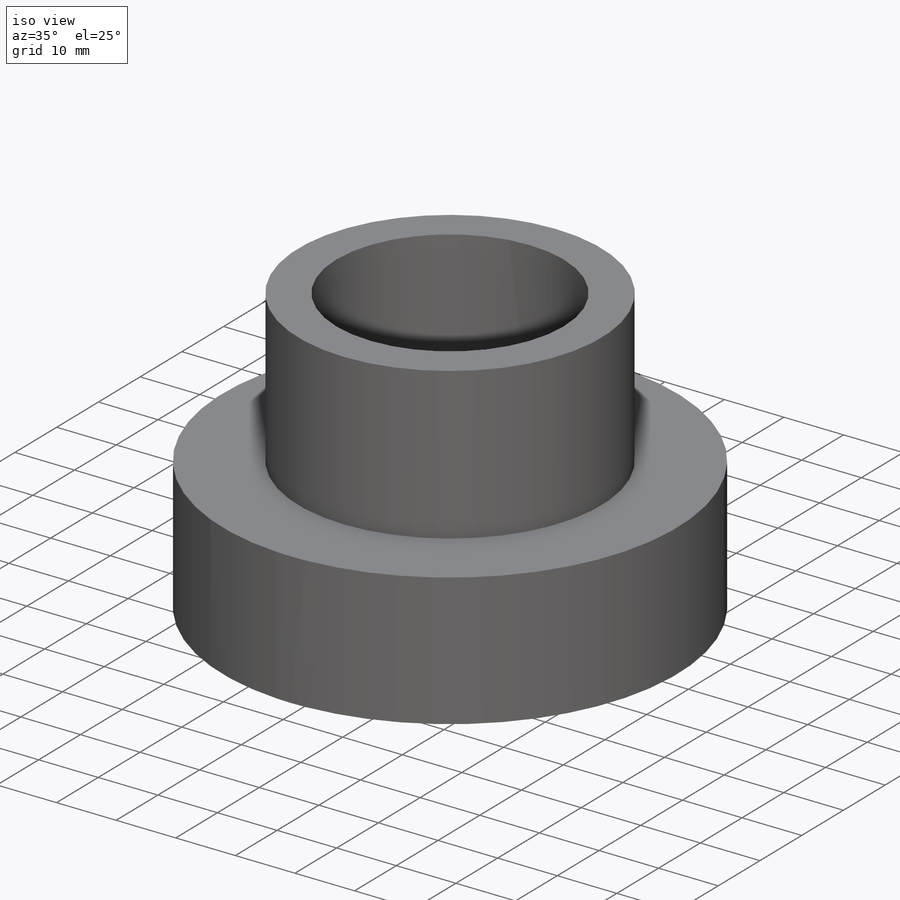
[diagram: iso view]
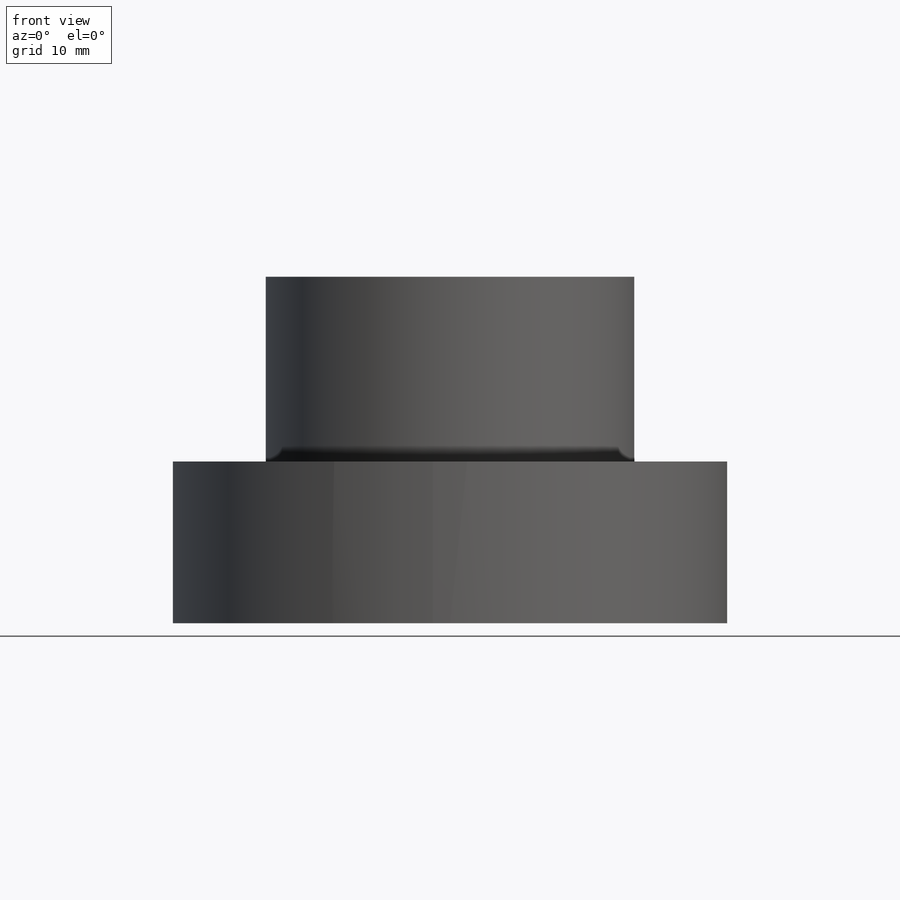
[diagram: front view]
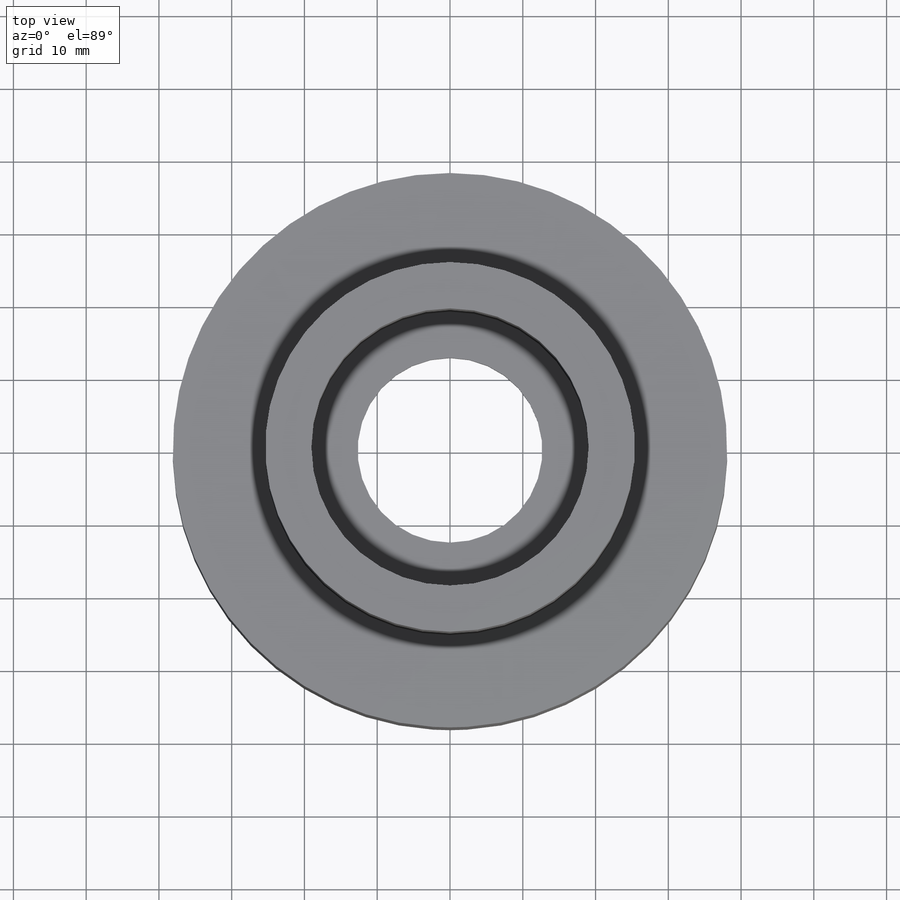
[diagram: top view]
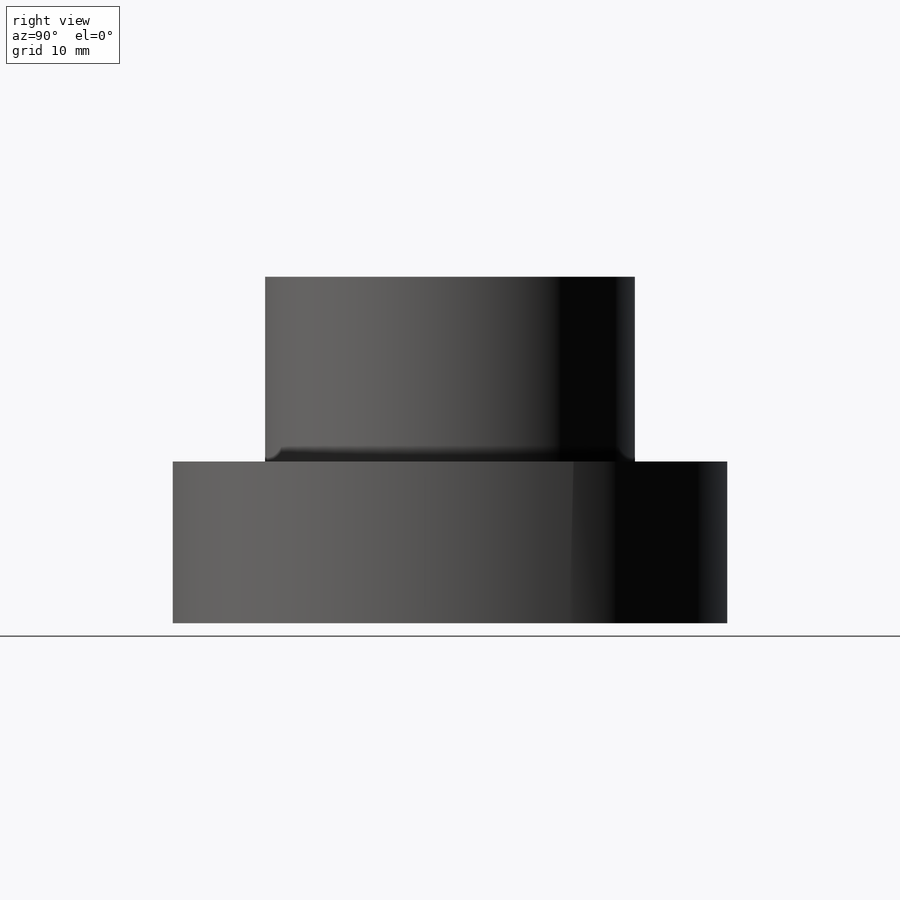
[diagram: right view]
SOLIDWORKS PART (.sldprt)
format: sldprt  version: not decoded by parser v0  size: 175,616 bytes
history: native  units: mm
features: sketch x4, thread x4, extrude x3, material x1, cut_extrude x1 (+11 scaffold rows collapsed)
feature tree (24):
  scaffold x11  (default folders/planes/origin — collapsed)
  material  "Material <not specified>"
  sketch  "Sketch1"  dims[D1=76.2mm D2=68.58mm D3=62.23mm D4=3.4544mm]
  extrude  "Boss-Extrude1"  Depth=19.05mm
  sketch  "Sketch2"  dims[D1=68.58mm D2=~3.29946mm D3=4.0]
  cut_extrude  "Cut-Extrude1"  [1 undecoded]
  thread  "Cosmetic Thread1"  Diameter=4.1656mm  [1 undecoded]
  thread  "Cosmetic Thread2"  Diameter=4.1656mm  [1 undecoded]
  thread  "Cosmetic Thread3"  Diameter=4.1656mm  [1 undecoded]
  thread  "Cosmetic Thread4"  Diameter=4.1656mm  [1 undecoded]
  sketch  "Sketch3"  dims[D1=25.4mm]
  extrude  "Boss-Extrude2"  Depth=3.175mm
  sketch  "Sketch4"  dims[D1=38.1mm D2=50.8mm]
  extrude  "Boss-Extrude3"  Depth=25.4mm
decode coverage: 11 of 12 modeling features carry decoded parameters
note: ~ marks probable driven/reference dimensions
note: 5 parameter values undecoded
note: suppression state not decoded; provenance and decode notes live in map.json
